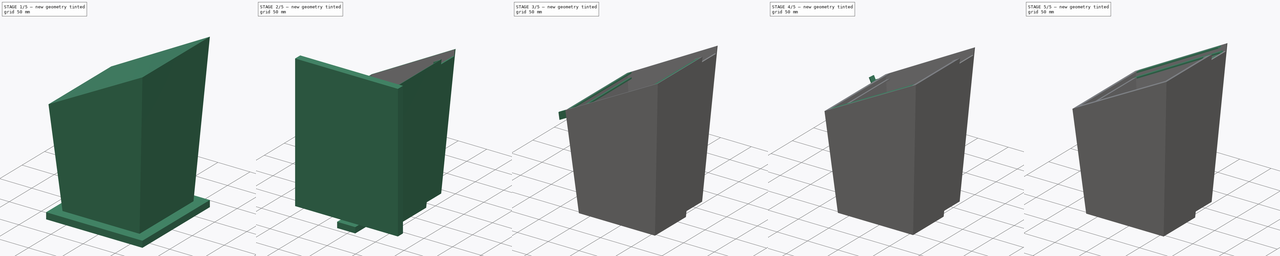
[diagram: build sequence overview — one tinted view per stage of 5, left to right]
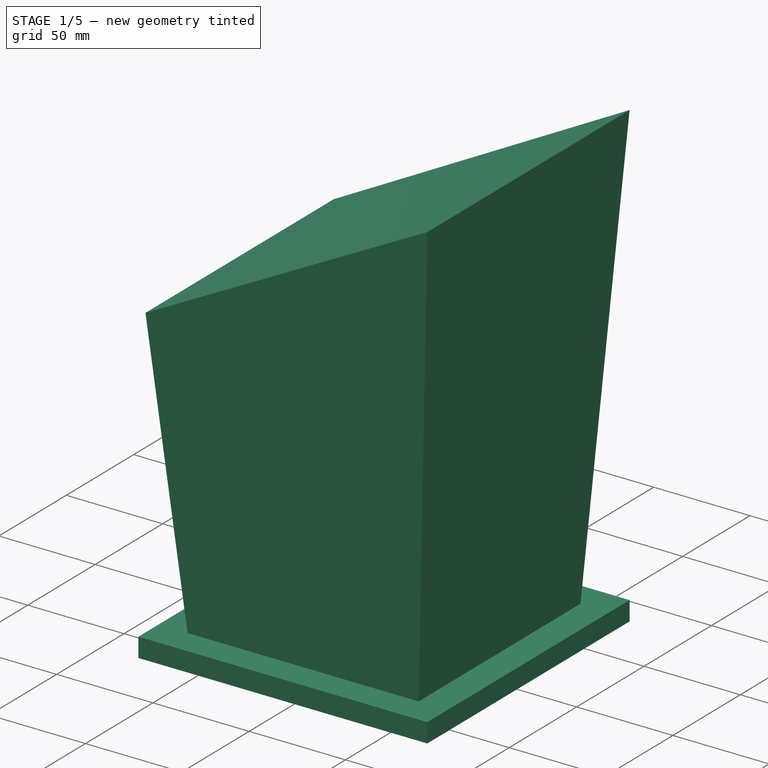
[diagram: stage 1 of 5 — iso view after this stage's code; geometry added in this stage tinted green]
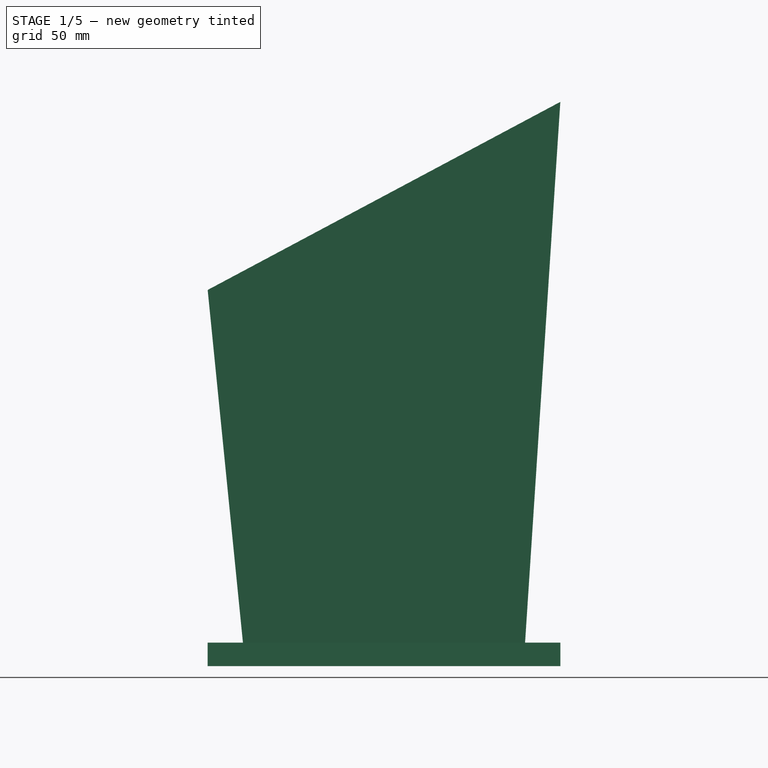
[diagram: stage 1 of 5 — front view after this stage's code; geometry added in this stage tinted green]
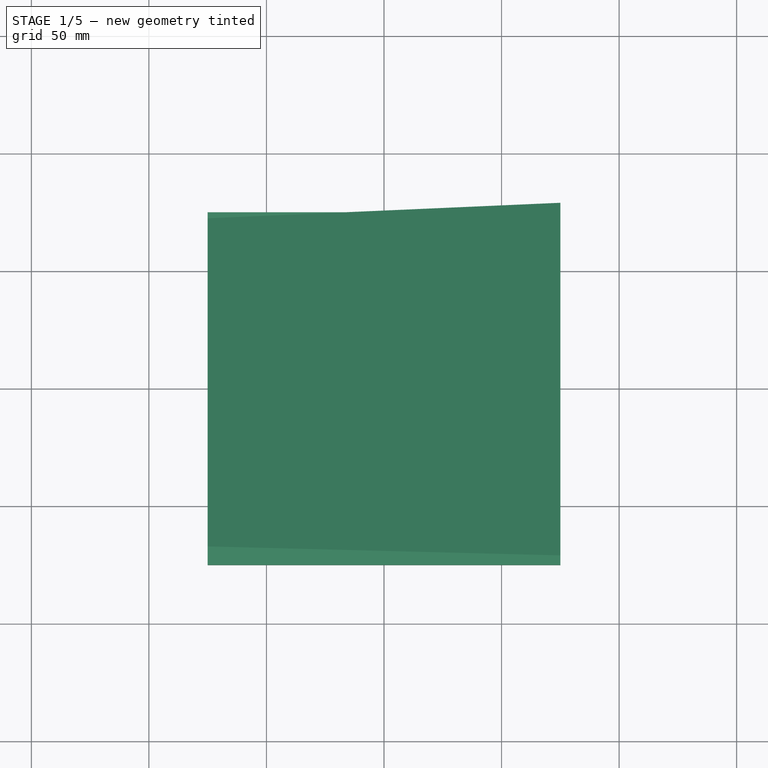
[diagram: stage 1 of 5 — top view after this stage's code; geometry added in this stage tinted green]
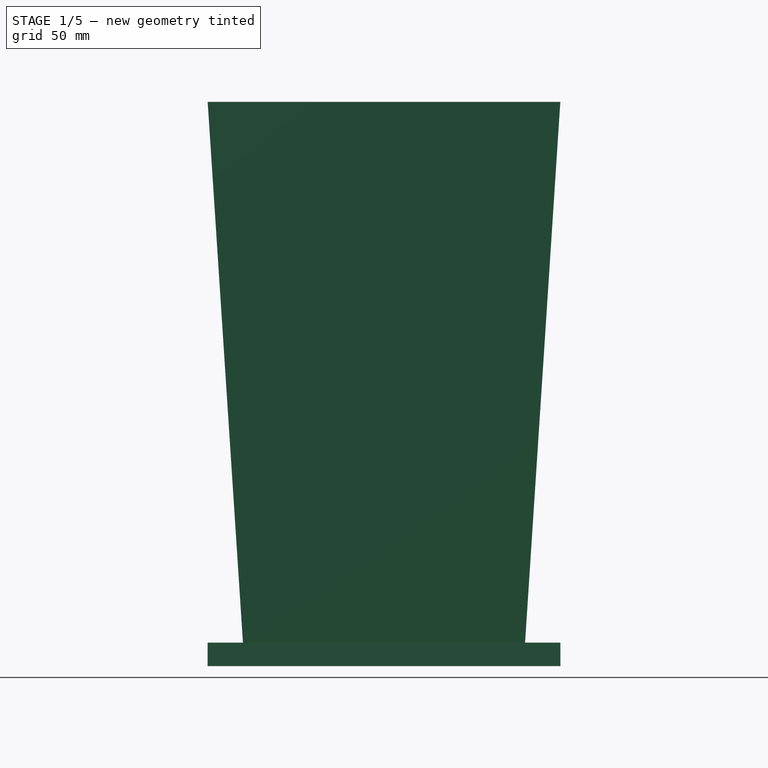
[diagram: stage 1 of 5 — right view after this stage's code; geometry added in this stage tinted green]
FCSTD DOCUMENT  (FreeCAD 0.15R4671 (Git))
Label: ermina
License: All rights reserved
LicenseURL: http://en.wikipedia.org/wiki/All_rights_reserved
objects: Sketcher::SketchObject×28, PartDesign::Pad×14, PartDesign::Pocket×12, Part::Thickness×1
note: 81 computed .brp shape members not serialized (recipe doc carries the construction recipe); baked Part::Feature solids carry a one-line shape summary decoded from their .brp

FEATURE [Sketcher::SketchObject] Sketch
  sketch-geometry (4):
    g0: LineSegment StartX=-75 StartY=75 StartZ=0 EndX=75 EndY=75 EndZ=0
    g1: LineSegment StartX=75 StartY=75 StartZ=0 EndX=75 EndY=-75 EndZ=0
    g2: LineSegment StartX=75 StartY=-75 StartZ=0 EndX=-75 EndY=-75 EndZ=0
    g3: LineSegment StartX=-75 StartY=-75 StartZ=0 EndX=-75 EndY=75 EndZ=0
  constraints (14):
    c: Coincident(g0,g1)
    c: Coincident(g1,g2)
    c: Coincident(g2,g3)
    c: Coincident(g3,g0)
    c: Horizontal(g0)
    c: Horizontal(g2)
    c: Vertical(g1)
    c: Vertical(g3)
    c: Equal(g3,g0)
    c: Equal(g0,g1)
    c: Equal(g1,g2)
    c: DistanceX(g0) = 150
    c: DistanceX(g-2,g0) = 75
    c: DistanceY(g-1,g0) = 75
FEATURE [PartDesign::Pad] Pad
  Length = 230
  Length2 = 100
  Sketch = -> Sketch
  Type = 0
FEATURE [Sketcher::SketchObject] Sketch001
  ExternalGeometry = -> [Pad]
  Placement = pos=(0,-75,0) rot=(1,0,0;1.5708rad)
  Support = -> Pad [Face3]
  sketch-geometry (3):
    g0: LineSegment StartX=-75 StartY=150 StartZ=0 EndX=-75 EndY=230 EndZ=0
    g1: LineSegment StartX=-75 StartY=230 StartZ=0 EndX=75 EndY=230 EndZ=0
    g2: LineSegment StartX=75 StartY=230 StartZ=0 EndX=-75 EndY=150 EndZ=0
  constraints (8):
    c: Coincident(g0,g1)
    c: Horizontal(g1)
    c: Coincident(g1,g2)
    c: Coincident(g2,g0)
    c: Coincident(g0,g-4)
    c: Coincident(g1,g-3)
    c: DistanceY(g0) = 80
    c: PointOnObject(g0,g-4)
FEATURE [PartDesign::Pocket] Pocket
  Length = 5
  Sketch = -> Sketch001
  Type = 1
FEATURE [Sketcher::SketchObject] Sketch005
  ExternalGeometry = -> [Pocket]
  Placement = pos=(75,0,0) rot=(0.57735,0.57735,0.57735;2.0944rad)
  Support = -> Pocket [Face3]
  sketch-geometry (6):
    g0: LineSegment StartX=-75 StartY=230 StartZ=0 EndX=-75 EndY=0 EndZ=0
    g1: LineSegment StartX=-75 StartY=0 StartZ=0 EndX=-60 EndY=0 EndZ=0
    g2: LineSegment StartX=-60 StartY=0 StartZ=0 EndX=-75 EndY=230 EndZ=0
    g3: LineSegment StartX=75 StartY=230 StartZ=0 EndX=60 EndY=0 EndZ=0
    g4: LineSegment StartX=60 StartY=0 StartZ=0 EndX=75 EndY=0 EndZ=0
    g5: LineSegment StartX=75 StartY=0 StartZ=0 EndX=75 EndY=230 EndZ=0
  constraints (16):
    c: Coincident(g-4,g0)
    c: Coincident(g0,g-5)
    c: Vertical(g0)
    c: Coincident(g0,g1)
    c: Coincident(g1,g2)
    c: Coincident(g2,g0)
    c: Coincident(g-3,g3)
    c: Coincident(g3,g4)
    c: Coincident(g4,g-5)
    c: Coincident(g4,g5)
    c: Coincident(g5,g3)
    c: Vertical(g5)
    c: Equal(g4,g1)
    c: DistanceX(g4) = 15
    c: PointOnObject(g1,g-5)
    c: PointOnObject(g3,g-5)
FEATURE [PartDesign::Pocket] Pocket001
  Length = 5
  Sketch = -> Sketch005
  Type = 1
FEATURE [Sketcher::SketchObject] Sketch006
  Placement = pos=(0,0,0) rot=(1,0,0;3.14159rad)
  Support = -> Pocket001 [Face3]
  sketch-geometry (4):
    g0: LineSegment StartX=-75 StartY=75 StartZ=0 EndX=75 EndY=75 EndZ=0
    g1: LineSegment StartX=75 StartY=75 StartZ=0 EndX=75 EndY=-75 EndZ=0
    g2: LineSegment StartX=75 StartY=-75 StartZ=0 EndX=-75 EndY=-75 EndZ=0
    g3: LineSegment StartX=-75 StartY=-75 StartZ=0 EndX=-75 EndY=75 EndZ=0
  constraints (14):
    c: Coincident(g0,g1)
    c: Coincident(g1,g2)
    c: Coincident(g2,g3)
    c: Coincident(g3,g0)
    c: Horizontal(g0)
    c: Horizontal(g2)
    c: Vertical(g1)
    c: Vertical(g3)
    c: Equal(g0,g3)
    c: Equal(g3,g1)
    c: Equal(g1,g2)
    c: DistanceX(g0) = 150
    c: DistanceX(g-2,g0) = 75
    c: DistanceY(g-1,g0) = 75
FEATURE [PartDesign::Pad] Pad001
  Length = 10
  Length2 = 100
  Sketch = -> Sketch006
  Type = 0
FEATURE [Sketcher::SketchObject] Sketch007
  ExternalGeometry = -> [Pad001]
  Placement = pos=(0,-75,0) rot=(1,0,0;1.5708rad)
  Support = -> Pad001 [Face10]
  sketch-geometry (6):
    g0: LineSegment StartX=-75 StartY=150 StartZ=0 EndX=-75 EndY=0 EndZ=0
    g1: LineSegment StartX=-75 StartY=0 StartZ=0 EndX=-60 EndY=0 EndZ=0
    g2: LineSegment StartX=-60 StartY=0 StartZ=0 EndX=-75 EndY=150 EndZ=0
    g3: LineSegment StartX=75 StartY=230 StartZ=0 EndX=75 EndY=0 EndZ=0
    g4: LineSegment StartX=75 StartY=0 StartZ=0 EndX=60 EndY=0 EndZ=0
    g5: LineSegment StartX=60 StartY=0 StartZ=0 EndX=75 EndY=230 EndZ=0
  constraints (16):
    c: Vertical(g0)
    c: Coincident(g0,g1)
    c: Horizontal(g1)
    c: Coincident(g1,g2)
    c: Coincident(g2,g0)
    c: Vertical(g3)
    c: Coincident(g3,g4)
    c: Horizontal(g4)
    c: Coincident(g4,g5)
    c: Coincident(g5,g3)
    c: Equal(g4,g1)
    c: DistanceX(g1) = 15
    c: DistanceY(g0) = -150
    c: DistanceY(g3) = -230
    c: Coincident(g0,g-3)
    c: Coincident(g3,g-3)
FEATURE [PartDesign::Pocket] Pocket002
  Length = 5
  Sketch = -> Sketch007
  Type = 1
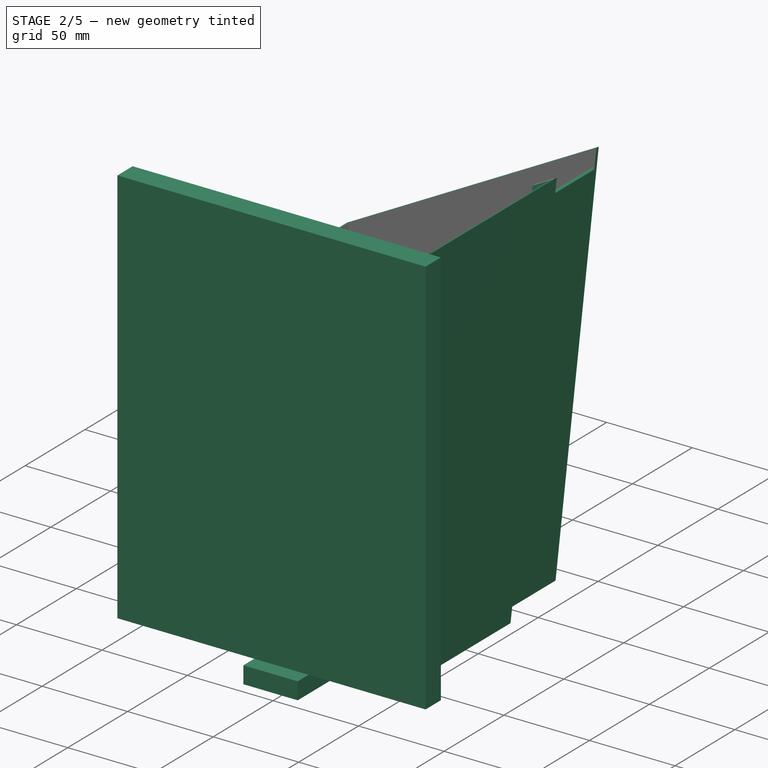
[diagram: stage 2 of 5 — iso view after this stage's code; geometry added in this stage tinted green]
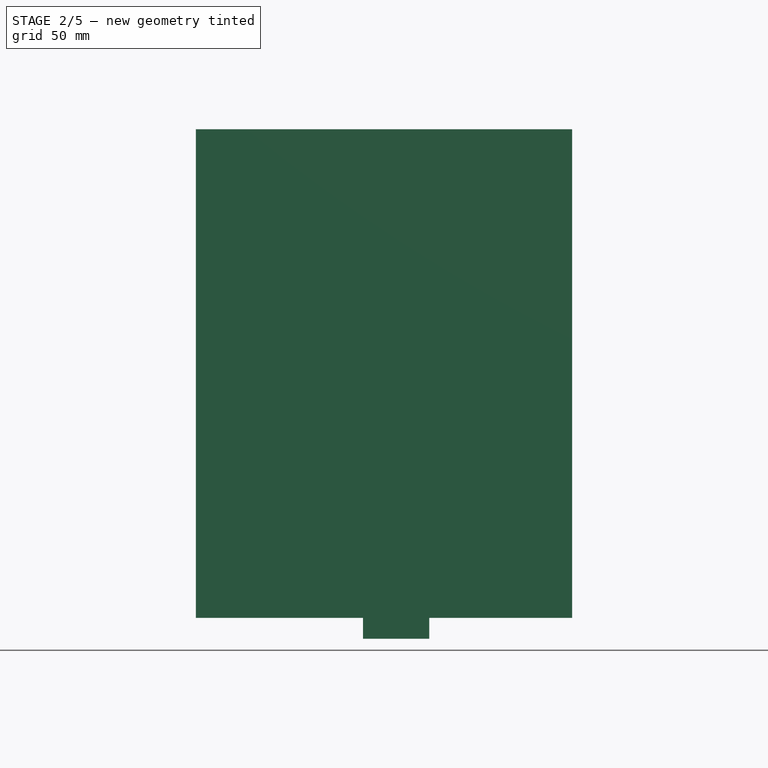
[diagram: stage 2 of 5 — front view after this stage's code; geometry added in this stage tinted green]
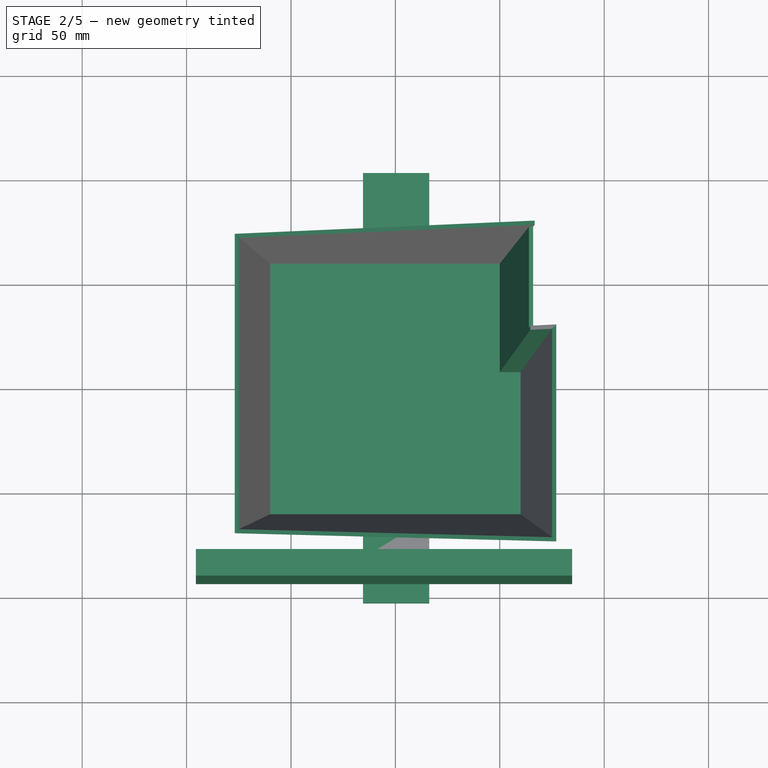
[diagram: stage 2 of 5 — top view after this stage's code; geometry added in this stage tinted green]
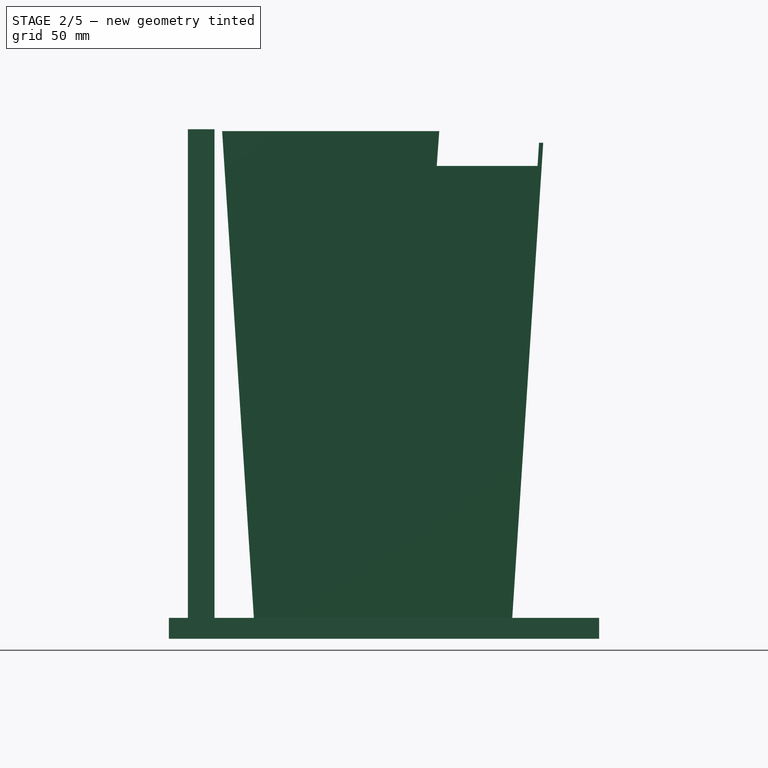
[diagram: stage 2 of 5 — right view after this stage's code; geometry added in this stage tinted green]
FEATURE [Sketcher::SketchObject] Sketch008
  ExternalGeometry = -> [Pocket002]
  Placement = pos=(0,-75,0) rot=(1,0,0;1.5708rad)
  Support = -> Pocket002 [Face10]
  sketch-geometry (4):
    g0: LineSegment StartX=-75 StartY=0 StartZ=0 EndX=75 EndY=0 EndZ=0
    g1: LineSegment StartX=75 StartY=0 StartZ=0 EndX=75 EndY=-10 EndZ=0
    g2: LineSegment StartX=75 StartY=-10 StartZ=0 EndX=-75 EndY=-10 EndZ=0
    g3: LineSegment StartX=-75 StartY=-10 StartZ=0 EndX=-75 EndY=0 EndZ=0
  constraints (10):
    c: Coincident(g0,g1)
    c: Coincident(g1,g2)
    c: Coincident(g2,g3)
    c: Coincident(g3,g0)
    c: Horizontal(g0)
    c: Horizontal(g2)
    c: Vertical(g1)
    c: Vertical(g3)
    c: Coincident(g0,g-4)
    c: Coincident(g2,g-3)
FEATURE [PartDesign::Pocket] Pocket003
  Length = 5
  Sketch = -> Sketch008
  Type = 1
FEATURE [Sketcher::SketchObject] Sketch009
  ExternalGeometry = -> [Pocket003]
  Placement = pos=(59.7459,0,-3.89647) rot=(0.589481,0.589481,0.552289;2.13239rad)
  Support = -> Pocket003 [Face3]
  sketch-geometry (4):
    g0: LineSegment StartX=78.537 StartY=257.946 StartZ=0 EndX=26.537 EndY=257.946 EndZ=0
    g1: LineSegment StartX=26.537 StartY=257.946 StartZ=0 EndX=5.73494 EndY=-28.288 EndZ=0
    g2: LineSegment StartX=5.73494 StartY=-28.288 StartZ=0 EndX=57.7349 EndY=-28.288 EndZ=0
    g3: LineSegment StartX=57.7349 StartY=-28.288 StartZ=0 EndX=78.537 EndY=257.946 EndZ=0
  constraints (10):
    c: Horizontal(g0)
    c: Coincident(g0,g1)
    c: Coincident(g1,g2)
    c: Coincident(g2,g3)
    c: Coincident(g3,g0)
    c: Horizontal(g2)
    c: Parallel(g3,g1)
    c: Distance(g0,g-3) = 2
    c: Equal(g2,g0)
    c: DistanceX(g0) = -52
FEATURE [PartDesign::Pocket] Pocket004
  Length = 10
  Sketch = -> Sketch009
  Type = 0
FEATURE [Part::Thickness] Thickness
  Faces = -> Pocket004 [Face1]
  Intersection = false
  Join = 2
  Mode = 0
  SelfIntersection = false
  Value = 2
FEATURE [Sketcher::SketchObject] Sketch010
  ExternalGeometry = -> [Thickness]
  Placement = pos=(49.7671,0,-3.24568) rot=(0.564403,-0.564403,-0.602411;2.05721rad)
  Support = -> Thickness [Face4]
  sketch-geometry (4):
    g0: LineSegment StartX=-73.9881 StartY=218.192 StartZ=0 EndX=-25.6532 EndY=218.192 EndZ=0
    g1: LineSegment StartX=-25.6532 StartY=218.192 StartZ=0 EndX=-28.0466 EndY=251.125 EndZ=0
    g2: LineSegment StartX=-28.0466 StartY=251.125 StartZ=0 EndX=-76.1313 EndY=251.125 EndZ=0
    g3: LineSegment StartX=-76.1313 StartY=251.125 StartZ=0 EndX=-73.9881 EndY=218.192 EndZ=0
  constraints (9):
    c: Horizontal(g0)
    c: Coincident(g0,g1)
    c: Coincident(g1,g2)
    c: Horizontal(g2)
    c: Coincident(g2,g3)
    c: Coincident(g3,g0)
    c: Tangent(g3,g-4)
    c: Distance(g-3,g0) = 10
    c: Tangent(g1,g-5)
FEATURE [PartDesign::Pocket] Pocket005
  Length = 2
  Sketch = -> Sketch010
  Type = 0
FEATURE [Sketcher::SketchObject] Sketch011
  ExternalGeometry = -> [Pocket005]
  Placement = pos=(-78.8927,0,147.924) rot=(0,-1,0;0.489957rad)
  Support = -> Pocket005 [Face2]
  sketch-geometry (12):
    g0: LineSegment StartX=162.645 StartY=24.3747 StartZ=0 EndX=174.412 EndY=24.8253 EndZ=0
    g1: LineSegment StartX=174.412 StartY=24.8253 StartZ=0 EndX=174.412 EndY=-75 EndZ=0
    g2: LineSegment StartX=174.412 StartY=-75 StartZ=0 EndX=4.41176 EndY=-69.7826 EndZ=0
    g3: LineSegment StartX=4.41176 StartY=-69.7826 StartZ=0 EndX=4.41176 EndY=69.7826 EndZ=0
    g4: LineSegment StartX=4.41176 StartY=69.7826 StartZ=0 EndX=162.645 EndY=74.6389 EndZ=0
    g5: LineSegment StartX=162.645 StartY=74.6389 StartZ=0 EndX=162.645 EndY=69.6365 EndZ=0
    g6: LineSegment StartX=162.645 StartY=69.6365 StartZ=0 EndX=9.41176 EndY=64.9337 EndZ=0
    g7: LineSegment StartX=9.41176 StartY=64.9337 StartZ=0 EndX=9.41176 EndY=-64.9337 EndZ=0
    g8: LineSegment StartX=9.41176 StartY=-64.9337 StartZ=0 EndX=169.412 EndY=-69.8442 EndZ=0
    g9: LineSegment StartX=169.412 StartY=-69.8442 StartZ=0 EndX=169.412 EndY=19.3747 EndZ=0
    g10: LineSegment StartX=169.412 StartY=19.3747 StartZ=0 EndX=162.645 EndY=19.3747 EndZ=0
    g11: LineSegment StartX=162.645 StartY=19.3747 StartZ=0 EndX=162.645 EndY=24.3747 EndZ=0
  constraints (30):
    c: Coincident(g0,g1)
    c: Coincident(g1,g2)
    c: Coincident(g2,g3)
    c: Coincident(g3,g4)
    c: Coincident(g4,g5)
    c: Coincident(g5,g6)
    c: Coincident(g6,g7)
    c: Coincident(g7,g8)
    c: Coincident(g8,g9)
    c: Coincident(g9,g10)
    c: Coincident(g10,g11)
    c: Coincident(g11,g0)
    c: Coincident(g0,g-5)
    c: Coincident(g0,g-4)
    c: Coincident(g1,g-6)
    c: Vertical(g11)
    c: Horizontal(g10)
    c: DistanceY(g11) = 5
    c: Vertical(g9)
    c: Distance(g9,g-5) = 5
    c: Coincident(g2,g-7)
    c: Distance(g8,g-6) = 5
    c: Distance(g7,g-6) = 5
    c: Coincident(g-7,g3)
    c: Distance(g7,g-7) = 5
    c: Distance(g6,g-7) = 5
    c: Coincident(g4,g-3)
    c: Vertical(g5)
    c: Distance(g5,g-3) = 5
    c: Distance(g6,g-3) = 5
FEATURE [Sketcher::SketchObject] Sketch012
  Placement = pos=(0,0,-2) rot=(1,0,0;3.14159rad)
  Support = -> Pocket005 [Face17]
  sketch-geometry (4):
    g0: LineSegment StartX=-15.5286 StartY=102.562 StartZ=0 EndX=16.2382 EndY=102.562 EndZ=0
    g1: LineSegment StartX=16.2382 StartY=102.562 StartZ=0 EndX=16.2382 EndY=-103.469 EndZ=0
    g2: LineSegment StartX=16.2382 StartY=-103.469 StartZ=0 EndX=-15.5286 EndY=-103.469 EndZ=0
    g3: LineSegment StartX=-15.5286 StartY=-103.469 StartZ=0 EndX=-15.5286 EndY=102.562 EndZ=0
  constraints (8):
    c: Coincident(g0,g1)
    c: Coincident(g1,g2)
    c: Coincident(g2,g3)
    c: Coincident(g3,g0)
    c: Horizontal(g0)
    c: Horizontal(g2)
    c: Vertical(g1)
    c: Vertical(g3)
FEATURE [PartDesign::Pad] Pad002
  Length = 10
  Length2 = 100
  Sketch = -> Sketch012
  Type = 0
FEATURE [Sketcher::SketchObject] Sketch013
  ExternalGeometry = -> [Pad002]
  Placement = pos=(0,0,-2) rot=(0,0,1;0rad)
  Support = -> Pad002 [Face18]
  sketch-geometry (4):
    g0: LineSegment StartX=84.6464 StartY=-79.0765 StartZ=0 EndX=-95.5451 EndY=-79.0765 EndZ=0
    g1: LineSegment StartX=-95.5451 StartY=-79.0765 StartZ=0 EndX=-95.5451 EndY=-77.0765 EndZ=0
    g2: LineSegment StartX=-95.5451 StartY=-77.0765 StartZ=0 EndX=84.6464 EndY=-77.0765 EndZ=0
    g3: LineSegment StartX=84.6464 StartY=-77.0765 StartZ=0 EndX=84.6464 EndY=-79.0765 EndZ=0
  constraints (11):
    c: Coincident(g0,g1)
    c: Coincident(g1,g2)
    c: Coincident(g2,g3)
    c: Coincident(g3,g0)
    c: Horizontal(g0)
    c: Horizontal(g2)
    c: Vertical(g1)
    c: Vertical(g3)
    c: PointOnObject(g-3,g2)
    c: Parallel(g1,g3)
    c: DistanceY(g3) = -2
FEATURE [PartDesign::Pad] Pad003
  Length = 234
  Length2 = 100
  Sketch = -> Sketch013
  Type = 0
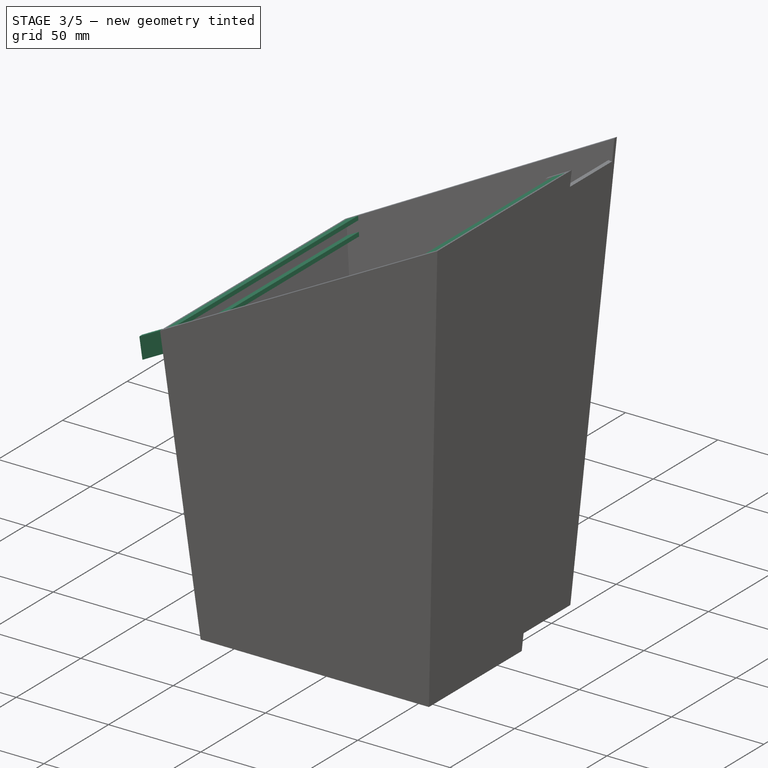
[diagram: stage 3 of 5 — iso view after this stage's code; geometry added in this stage tinted green]
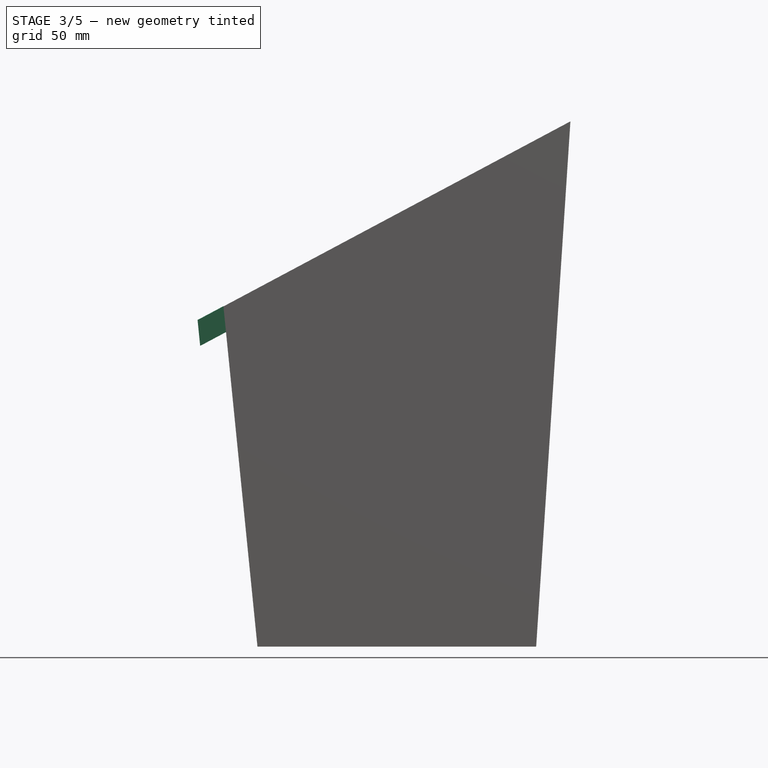
[diagram: stage 3 of 5 — front view after this stage's code; geometry added in this stage tinted green]
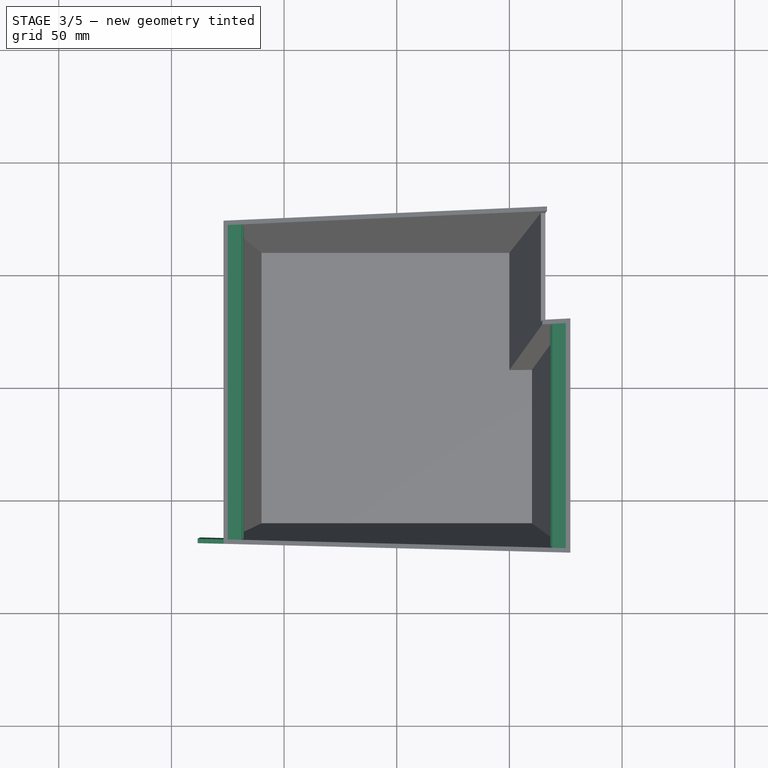
[diagram: stage 3 of 5 — top view after this stage's code; geometry added in this stage tinted green]
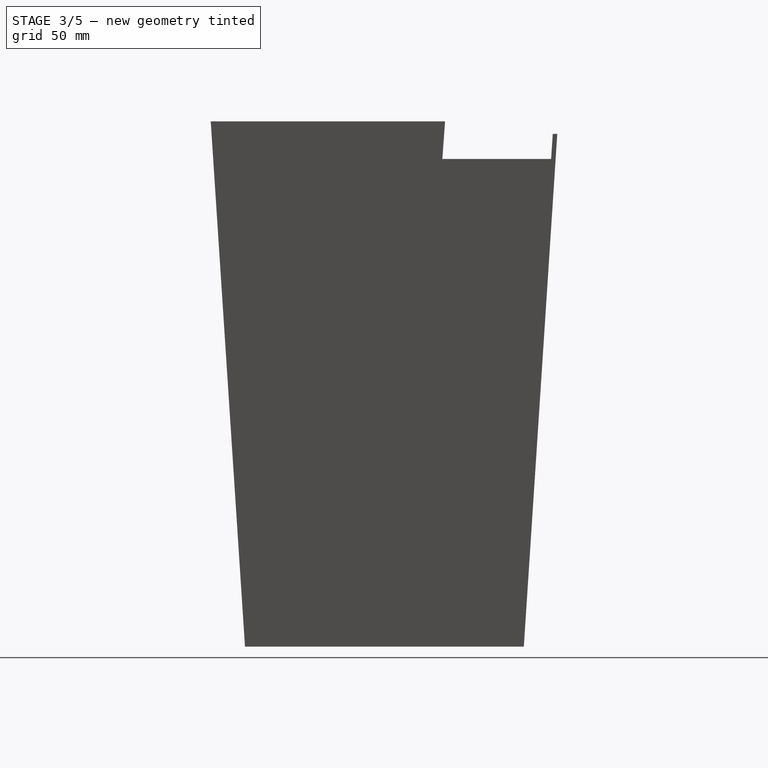
[diagram: stage 3 of 5 — right view after this stage's code; geometry added in this stage tinted green]
FEATURE [Sketcher::SketchObject] Sketch014
  ExternalGeometry = -> [Pad003]
  Placement = pos=(0,-80.7401,0) rot=(0,0.707107,0.707107;3.14159rad)
  Support = -> Pad003 [Face24]
  sketch-geometry (8):
    g0: LineSegment StartX=-75 StartY=230 StartZ=0 EndX=-68.8235 EndY=226.706 EndZ=0
    g1: LineSegment StartX=-68.8235 StartY=226.706 StartZ=0 EndX=-68.6704 EndY=224.358 EndZ=0
    g2: LineSegment StartX=-68.6704 StartY=224.358 StartZ=0 EndX=-74.8468 EndY=227.652 EndZ=0
    g3: LineSegment StartX=-74.8468 StartY=227.652 StartZ=0 EndX=-75 EndY=230 EndZ=0
    g4: LineSegment StartX=-74.464 StartY=221.781 StartZ=0 EndX=-74.3108 EndY=219.432 EndZ=0
    g5: LineSegment StartX=-74.3108 StartY=219.432 StartZ=0 EndX=-68.1343 EndY=216.138 EndZ=0
    g6: LineSegment StartX=-68.1343 StartY=216.138 StartZ=0 EndX=-68.2875 EndY=218.487 EndZ=0
    g7: LineSegment StartX=-68.2875 StartY=218.487 StartZ=0 EndX=-74.464 EndY=221.781 EndZ=0
  constraints (27):
    c: Coincident(g0,g1)
    c: Coincident(g1,g2)
    c: Coincident(g2,g3)
    c: Coincident(g3,g0)
    c: Coincident(g4,g5)
    c: Coincident(g5,g6)
    c: Coincident(g6,g7)
    c: Coincident(g7,g4)
    c: Parallel(g-3,g3)
    c: Parallel(g3,g4)
    c: Parallel(g4,g1)
    c: Parallel(g1,g6)
    c: Parallel(g5,g7)
    c: Parallel(g7,g2)
    c: Parallel(g2,g0)
    c: Parallel(g0,g-4)
    c: Equal(g2,g0)
    c: Equal(g0,g7)
    c: Equal(g7,g5)
    c: Distance(g5) = 7
    c: Equal(g1,g3)
    c: Equal(g3,g4)
    c: Equal(g4,g6)
    c: Distance(g0,g2) = 2
    c: Coincident(g0,g-4)
    c: PointOnObject(g4,g-3)
    c: Distance(g1,g7) = 5
FEATURE [PartDesign::Pad] Pad004
  Length = 10
  Length2 = 100
  Sketch = -> Sketch014
  Type = 3
  UpToFace = -> Pad003 [Face12]
FEATURE [Sketcher::SketchObject] Sketch015
  ExternalGeometry = -> [Pad004]
  Placement = pos=(0,-80.7401,0) rot=(0,0.707107,0.707107;3.14159rad)
  Support = -> Pad004 [Face28]
  sketch-geometry (8):
    g0: LineSegment StartX=75 StartY=150 StartZ=0 EndX=74.7848 EndY=147.848 EndZ=0
    g1: LineSegment StartX=74.7848 StartY=147.848 StartZ=0 EndX=68.6083 EndY=151.142 EndZ=0
    g2: LineSegment StartX=68.6083 StartY=151.142 StartZ=0 EndX=68.8235 EndY=153.294 EndZ=0
    g3: LineSegment StartX=68.8235 StartY=153.294 StartZ=0 EndX=75 EndY=150 EndZ=0
    g4: LineSegment StartX=68.0704 StartY=145.762 StartZ=0 EndX=67.8552 EndY=143.611 EndZ=0
    g5: LineSegment StartX=67.8552 StartY=143.611 StartZ=0 EndX=74.0316 EndY=140.316 EndZ=0
    g6: LineSegment StartX=74.0316 StartY=140.316 StartZ=0 EndX=74.2468 EndY=142.468 EndZ=0
    g7: LineSegment StartX=74.2468 StartY=142.468 StartZ=0 EndX=68.0704 EndY=145.762 EndZ=0
  constraints (27):
    c: Coincident(g0,g1)
    c: Coincident(g1,g2)
    c: Coincident(g2,g3)
    c: Coincident(g3,g0)
    c: Coincident(g4,g5)
    c: Coincident(g5,g6)
    c: Coincident(g6,g7)
    c: Coincident(g7,g4)
    c: Parallel(g1,g3)
    c: Parallel(g3,g5)
    c: Parallel(g5,g7)
    c: Parallel(g7,g-4)
    c: Parallel(g2,g0)
    c: Parallel(g0,g6)
    c: Parallel(g6,g4)
    c: Parallel(g4,g-3)
    c: Equal(g3,g1)
    c: Equal(g1,g7)
    c: Equal(g7,g5)
    c: Equal(g2,g0)
    c: Equal(g0,g6)
    c: Equal(g6,g4)
    c: Distance(g6,g5) = 2
    c: Distance(g5) = 7
    c: Coincident(g0,g-4)
    c: PointOnObject(g6,g-3)
    c: Distance(g1,g7) = 5
FEATURE [PartDesign::Pad] Pad005
  Length = 10
  Length2 = 100
  Sketch = -> Sketch015
  Type = 3
  UpToFace = -> Pad004 [Face15]
FEATURE [Sketcher::SketchObject] Sketch016
  ExternalGeometry = -> [Pad005]
  Placement = pos=(0,-93.4807,0) rot=(1,0,0;1.5708rad)
  Support = -> Pad005 [Face64]
  sketch-geometry (4):
    g0: LineSegment StartX=-95.5451 StartY=232 StartZ=0 EndX=84.6464 EndY=232 EndZ=0
    g1: LineSegment StartX=84.6464 StartY=232 StartZ=0 EndX=84.6464 EndY=-2 EndZ=0
    g2: LineSegment StartX=84.6464 StartY=-2 StartZ=0 EndX=-95.5451 EndY=-2 EndZ=0
    g3: LineSegment StartX=-95.5451 StartY=-2 StartZ=0 EndX=-95.5451 EndY=232 EndZ=0
  constraints (8):
    c: Coincident(g-4,g0)
    c: Coincident(g0,g-3)
    c: Coincident(g0,g1)
    c: Coincident(g1,g-3)
    c: Coincident(g1,g2)
    c: Coincident(g2,g-4)
    c: Coincident(g2,g3)
    c: Coincident(g3,g0)
FEATURE [PartDesign::Pocket] Pocket006
  Length = 0
  Sketch = -> Sketch016
  Type = 3
  UpToFace = -> Pad005 [Face3]
FEATURE [Sketcher::SketchObject] Sketch017
  ExternalGeometry = -> [Pocket006]
  Placement = pos=(0,0,-12) rot=(1,0,0;3.14159rad)
  Support = -> Pocket006 [Face45]
  sketch-geometry (4):
    g0: LineSegment StartX=-15.5286 StartY=102.562 StartZ=0 EndX=16.2382 EndY=102.562 EndZ=0
    g1: LineSegment StartX=16.2382 StartY=102.562 StartZ=0 EndX=16.2382 EndY=-103.469 EndZ=0
    g2: LineSegment StartX=16.2382 StartY=-103.469 StartZ=0 EndX=-15.5286 EndY=-103.469 EndZ=0
    g3: LineSegment StartX=-15.5286 StartY=-103.469 StartZ=0 EndX=-15.5286 EndY=102.562 EndZ=0
  constraints (8):
    c: Coincident(g-3,g0)
    c: Coincident(g0,g-3)
    c: Coincident(g0,g1)
    c: Coincident(g1,g-4)
    c: Coincident(g1,g2)
    c: Coincident(g2,g-4)
    c: Coincident(g2,g3)
    c: Coincident(g3,g0)
FEATURE [PartDesign::Pocket] Pocket007
  Length = 0
  Sketch = -> Sketch017
  Type = 3
  UpToFace = -> Pocket006 [Face19]
FEATURE [Sketcher::SketchObject] Sketch018
  ExternalGeometry = -> [Pocket007]
  Placement = pos=(0,-61.7416,-4.02663) rot=(1,0,0;1.63592rad)
  Support = -> Pocket007 [Face3]
  sketch-geometry (4):
    g0: LineSegment StartX=-76.9082 StartY=153.334 StartZ=0 EndX=-88.3872 EndY=147.199 EndZ=0
    g1: LineSegment StartX=-88.3872 StartY=147.199 StartZ=0 EndX=-87.248 EndY=135.783 EndZ=0
    g2: LineSegment StartX=-87.248 StartY=135.783 StartZ=0 EndX=-75.769 EndY=141.918 EndZ=0
    g3: LineSegment StartX=-75.769 StartY=141.918 StartZ=0 EndX=-76.9082 EndY=153.334 EndZ=0
  constraints (9):
    c: Coincident(g0,g1)
    c: Coincident(g1,g2)
    c: Coincident(g2,g3)
    c: Coincident(g3,g0)
    c: Parallel(g1,g3)
    c: Parallel(g3,g-4)
    c: Parallel(g0,g2)
    c: Parallel(g2,g-3)
    c: Coincident(g0,g-4)
FEATURE [PartDesign::Pad] Pad006
  Length = 2
  Length2 = 100
  Reversed = true
  Sketch = -> Sketch018
  Type = 0
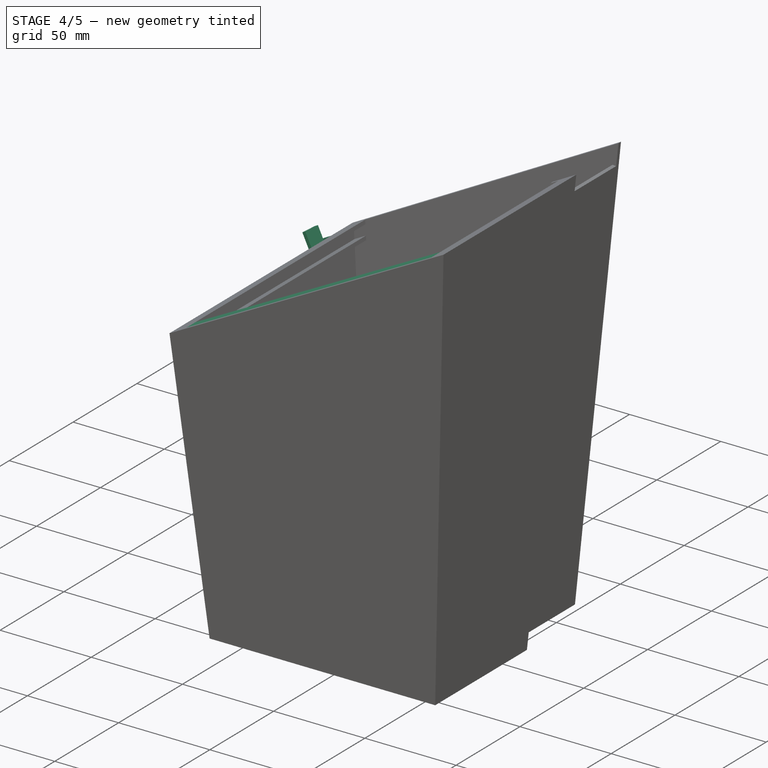
[diagram: stage 4 of 5 — iso view after this stage's code; geometry added in this stage tinted green]
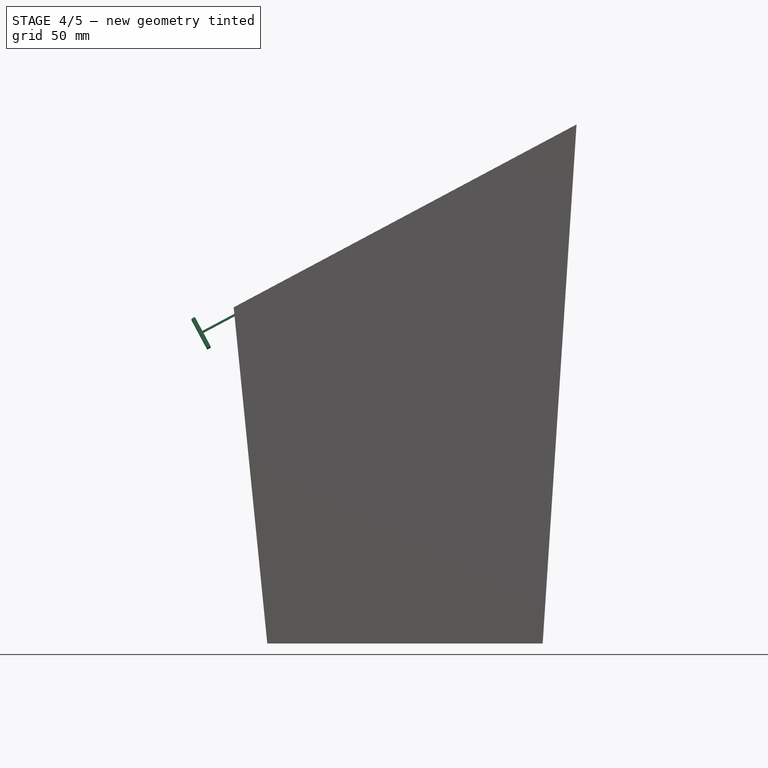
[diagram: stage 4 of 5 — front view after this stage's code; geometry added in this stage tinted green]
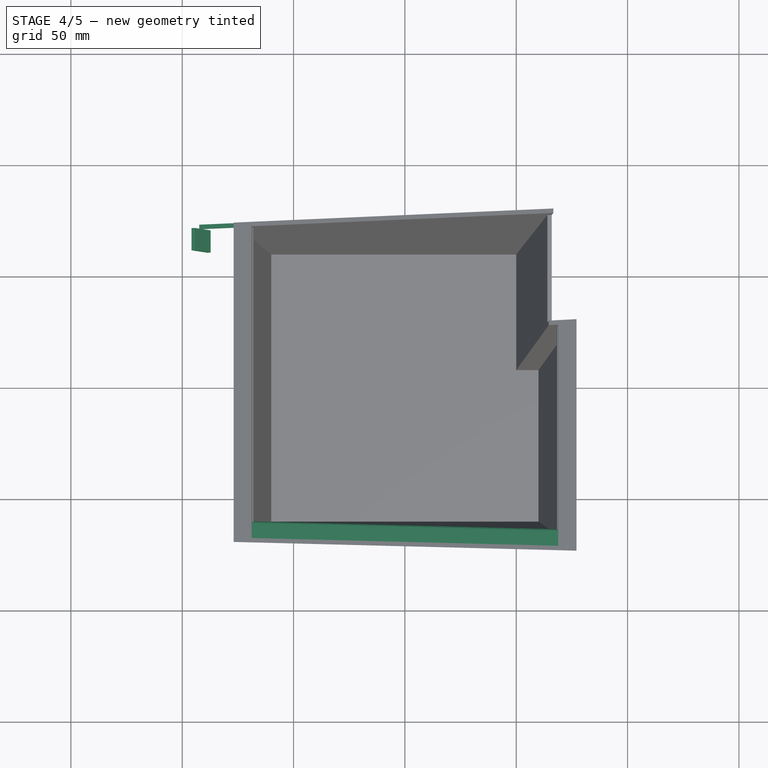
[diagram: stage 4 of 5 — top view after this stage's code; geometry added in this stage tinted green]
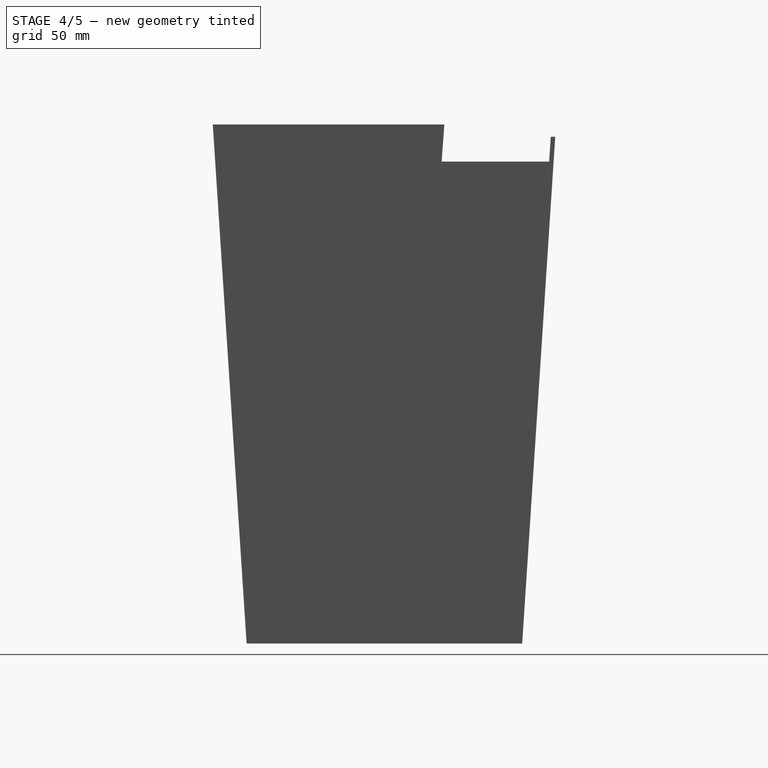
[diagram: stage 4 of 5 — right view after this stage's code; geometry added in this stage tinted green]
FEATURE [Sketcher::SketchObject] Sketch019
  ExternalGeometry = -> [Pad006]
  Placement = pos=(0,-59.7459,-3.89647) rot=(0,0.683711,0.729753;3.14159rad)
  Support = -> Pad006 [Face5]
  sketch-geometry (4):
    g0: LineSegment StartX=87.5052 StartY=147.67 StartZ=0 EndX=88.3872 EndY=147.199 EndZ=0
    g1: LineSegment StartX=88.3872 StartY=147.199 StartZ=0 EndX=83.6702 EndY=138.373 EndZ=0
    g2: LineSegment StartX=83.6702 StartY=138.373 StartZ=0 EndX=82.7883 EndY=138.845 EndZ=0
    g3: LineSegment StartX=82.7883 StartY=138.845 StartZ=0 EndX=87.5052 EndY=147.67 EndZ=0
  constraints (10):
    c: Coincident(g0,g1)
    c: Coincident(g1,g2)
    c: Coincident(g2,g3)
    c: Coincident(g3,g0)
    c: Parallel(g2,g0)
    c: Parallel(g0,g-3)
    c: Coincident(g0,g-3)
    c: Angle(g-3,g1) = 1.5708
    c: Parallel(g1,g3)
    c: Distance(g2) = 1
FEATURE [PartDesign::Pad] Pad007
  Length = 50
  Length2 = 100
  Sketch = -> Sketch019
  Type = 0
FEATURE [Sketcher::SketchObject] Sketch020
  ExternalGeometry = -> [Pad007]
  Placement = pos=(-6.674,0.232139,-3.55947) rot=(0.471648,0.44813,0.759426;1.8248rad)
  Support = -> Pad007 [Face19]
  sketch-geometry (8):
    g0: LineSegment StartX=-69.6144 StartY=167.647 StartZ=0 EndX=-62.6144 EndY=167.647 EndZ=0
    g1: LineSegment StartX=-62.6144 StartY=167.647 StartZ=0 EndX=-62.4994 EndY=165.647 EndZ=0
    g2: LineSegment StartX=-62.4994 StartY=165.647 StartZ=0 EndX=-69.4994 EndY=165.647 EndZ=0
    g3: LineSegment StartX=-69.4994 StartY=165.647 StartZ=0 EndX=-69.6144 EndY=167.647 EndZ=0
    g4: LineSegment StartX=-69.2118 StartY=160.647 StartZ=0 EndX=-62.2118 EndY=160.647 EndZ=0
    g5: LineSegment StartX=-62.2118 StartY=160.647 StartZ=0 EndX=-62.0968 EndY=158.647 EndZ=0
    g6: LineSegment StartX=-62.0968 StartY=158.647 StartZ=0 EndX=-69.0968 EndY=158.647 EndZ=0
    g7: LineSegment StartX=-69.0968 StartY=158.647 StartZ=0 EndX=-69.2118 EndY=160.647 EndZ=0
  constraints (27):
    c: Coincident(g0,g1)
    c: Coincident(g1,g2)
    c: Coincident(g2,g3)
    c: Coincident(g3,g0)
    c: Coincident(g4,g5)
    c: Coincident(g5,g6)
    c: Coincident(g6,g7)
    c: Coincident(g7,g4)
    c: Parallel(g6,g4)
    c: Parallel(g4,g2)
    c: Parallel(g2,g0)
    c: Parallel(g0,g-3)
    c: Parallel(g1,g5)
    c: Parallel(g5,g7)
    c: Parallel(g7,g3)
    c: Parallel(g3,g-5)
    c: Equal(g0,g2)
    c: Equal(g2,g4)
    c: Equal(g4,g6)
    c: Equal(g7,g5)
    c: Equal(g5,g1)
    c: Equal(g1,g3)
    c: Distance(g6) = 7
    c: Distance(g0,g2) = 2
    c: Coincident(g0,g-5)
    c: PointOnObject(g4,g-4)
    c: Distance(g2,g4) = 5
FEATURE [PartDesign::Pad] Pad008
  Length = 10
  Length2 = 100
  Sketch = -> Sketch020
  Type = 1
FEATURE [Sketcher::SketchObject] Sketch021
  Placement = pos=(-72.9719,0.473888,-7.26628) rot=(-0.593164,0.596644,0.54053;4.12672rad)
  Support = -> Pad008 [Face4]
  sketch-geometry (4):
    g0: LineSegment StartX=16.2412 StartY=156.513 StartZ=0 EndX=72.9595 EndY=156.513 EndZ=0
    g1: LineSegment StartX=72.9595 StartY=156.513 StartZ=0 EndX=72.9595 EndY=138.17 EndZ=0
    g2: LineSegment StartX=72.9595 StartY=138.17 StartZ=0 EndX=16.2412 EndY=138.17 EndZ=0
    g3: LineSegment StartX=16.2412 StartY=138.17 StartZ=0 EndX=16.2412 EndY=156.513 EndZ=0
  constraints (8):
    c: Coincident(g0,g1)
    c: Coincident(g1,g2)
    c: Coincident(g2,g3)
    c: Coincident(g3,g0)
    c: Horizontal(g0)
    c: Horizontal(g2)
    c: Vertical(g1)
    c: Vertical(g3)
FEATURE [PartDesign::Pocket] Pocket008
  Length = 0
  Sketch = -> Sketch021
  Type = 3
  UpToFace = -> Pad008 [Face10]
FEATURE [Sketcher::SketchObject] Sketch022
  ExternalGeometry = -> [Pocket008]
  Placement = pos=(-60.9999,0.396141,-6.07415) rot=(0.559887,0.555905,0.614406;2.03448rad)
  Support = -> Pocket008 [Face20]
  sketch-geometry (3):
    g0: LineSegment StartX=-70.1143 StartY=155.875 StartZ=0 EndX=-70.1223 EndY=155.999 EndZ=0
    g1: LineSegment StartX=-70.1223 StartY=155.999 StartZ=0 EndX=-72.1181 EndY=155.87 EndZ=0
    g2: LineSegment StartX=-72.1181 StartY=155.87 StartZ=0 EndX=-70.1143 EndY=155.875 EndZ=0
  constraints (2):
    c: Coincident(g0,g-4)
    c: Coincident(g0,g1)
FEATURE [PartDesign::Pocket] Pocket009
  Length = 5
  Sketch = -> Sketch022
  Type = 1
FEATURE [Sketcher::SketchObject] Sketch023
  ExternalGeometry = -> [Pocket009]
  Placement = pos=(0,61.7416,-4.02663) rot=(0,0.729753,0.683711;3.14159rad)
  Support = -> Pocket009 [Face23]
  sketch-geometry (4):
    g0: LineSegment StartX=74.6957 StartY=151.304 StartZ=0 EndX=92.3345 EndY=141.877 EndZ=0
    g1: LineSegment StartX=92.3345 StartY=141.877 StartZ=0 EndX=92.236 EndY=140.89 EndZ=0
    g2: LineSegment StartX=92.236 StartY=140.89 StartZ=0 EndX=74.5972 EndY=150.317 EndZ=0
    g3: LineSegment StartX=74.5972 StartY=150.317 StartZ=0 EndX=74.6957 EndY=151.304 EndZ=0
  constraints (10):
    c: Coincident(g0,g1)
    c: Coincident(g1,g2)
    c: Coincident(g2,g3)
    c: Coincident(g3,g0)
    c: Parallel(g3,g1)
    c: Parallel(g1,g-4)
    c: Parallel(g2,g0)
    c: Parallel(g0,g-3)
    c: Distance(g0) = 20
    c: Distance(g0,g-4) = 2
FEATURE [PartDesign::Pad] Pad009
  Length = 2
  Length2 = 100
  Reversed = true
  Sketch = -> Sketch023
  Type = 0
FEATURE [Sketcher::SketchObject] Sketch024
  ExternalGeometry = -> [Pad009]
  Placement = pos=(0,59.7459,-3.89647) rot=(1,0,0;1.50567rad)
  Support = -> Pad009 [Face28]
  sketch-geometry (4):
    g0: LineSegment StartX=-95.8554 StartY=147.407 StartZ=0 EndX=-88.7849 EndY=134.178 EndZ=0
    g1: LineSegment StartX=-88.7849 StartY=134.178 StartZ=0 EndX=-87.2473 EndY=135 EndZ=0
    g2: LineSegment StartX=-87.2473 StartY=135 StartZ=0 EndX=-94.3178 EndY=148.229 EndZ=0
    g3: LineSegment StartX=-94.3178 StartY=148.229 StartZ=0 EndX=-95.8554 EndY=147.407 EndZ=0
  constraints (9):
    c: Coincident(g0,g1)
    c: Coincident(g1,g2)
    c: Coincident(g2,g3)
    c: Coincident(g3,g0)
    c: Parallel(g3,g1)
    c: Parallel(g1,g-3)
    c: Parallel(g2,g0)
    c: Angle(g0,g-3) = 1.5708
    c: Distance(g2) = 15
FEATURE [PartDesign::Pad] Pad010
  Length = 10
  Length2 = 100
  Sketch = -> Sketch024
  Type = 0
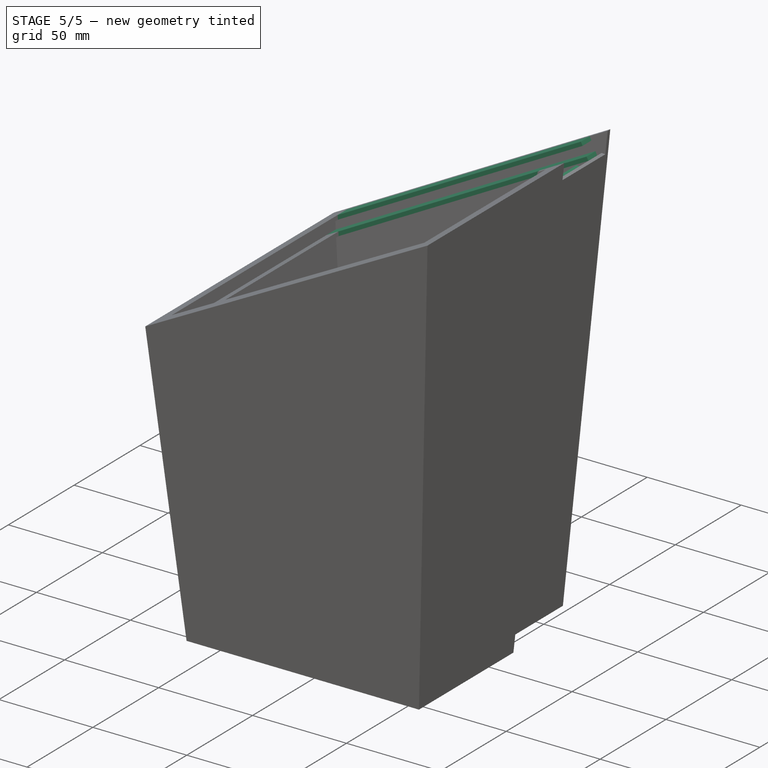
[diagram: stage 5 of 5 — iso view after this stage's code; geometry added in this stage tinted green]
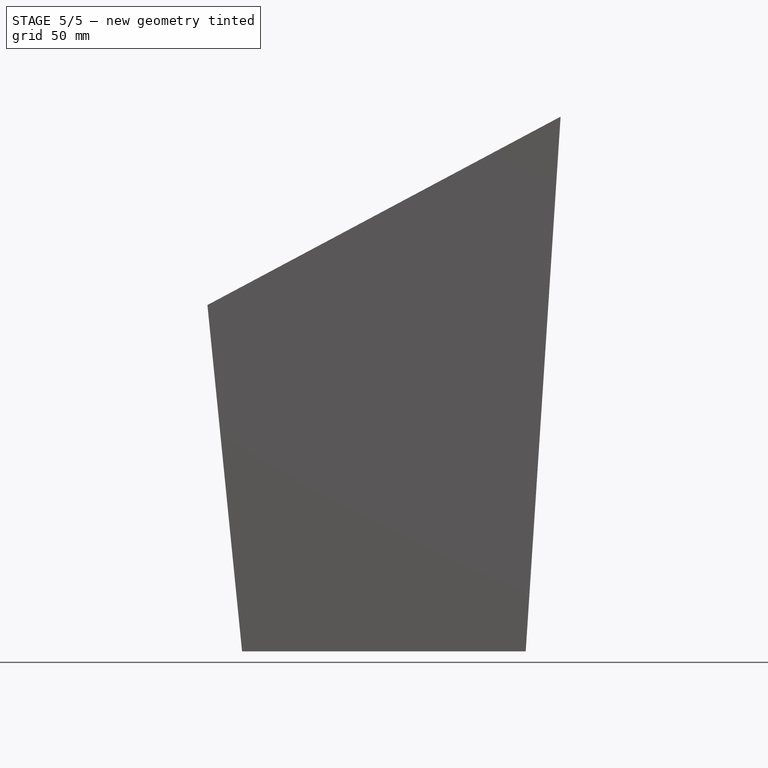
[diagram: stage 5 of 5 — front view after this stage's code; geometry added in this stage tinted green]
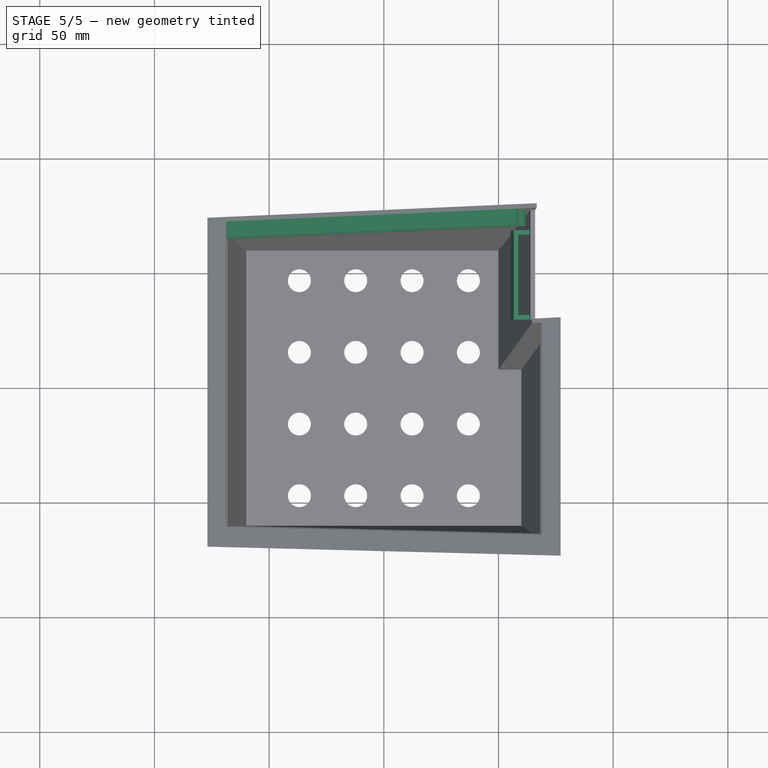
[diagram: stage 5 of 5 — top view after this stage's code; geometry added in this stage tinted green]
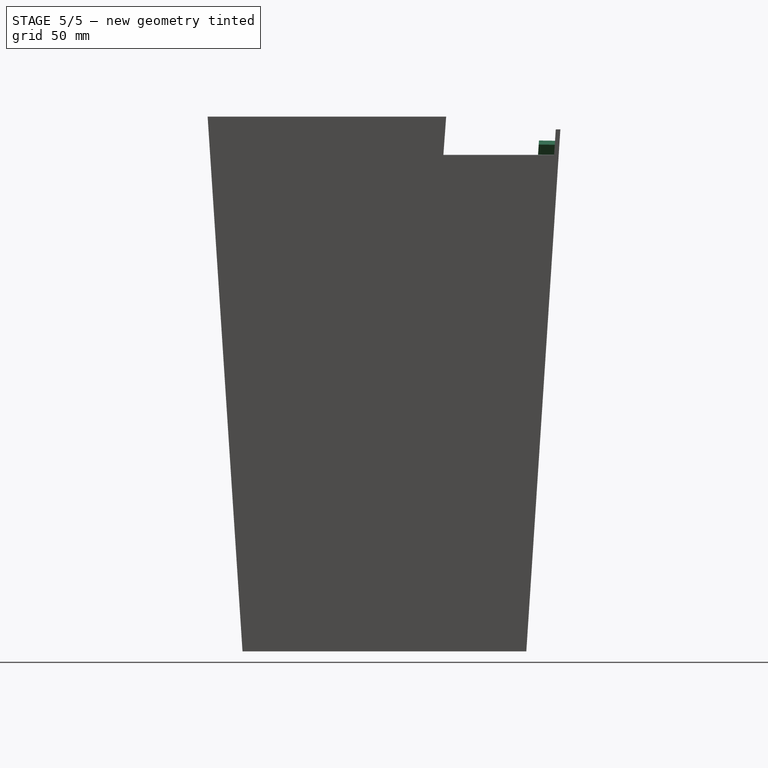
[diagram: stage 5 of 5 — right view after this stage's code; geometry added in this stage tinted green]
FEATURE [Sketcher::SketchObject] Sketch025
  ExternalGeometry = -> [Pad010]
  Placement = pos=(-11.7407,-0.408371,-6.26168) rot=(0.44336,0.466628,0.765304;1.85287rad)
  Support = -> Pad010 [Face52]
  sketch-geometry (8):
    g0: LineSegment StartX=69.6144 StartY=167.647 StartZ=0 EndX=62.6144 EndY=167.647 EndZ=0
    g1: LineSegment StartX=62.6144 StartY=167.647 StartZ=0 EndX=62.4996 EndY=165.65 EndZ=0
    g2: LineSegment StartX=62.4996 StartY=165.65 StartZ=0 EndX=69.4996 EndY=165.65 EndZ=0
    g3: LineSegment StartX=69.4996 StartY=165.65 StartZ=0 EndX=69.6144 EndY=167.647 EndZ=0
    g4: LineSegment StartX=69.2125 StartY=160.659 StartZ=0 EndX=62.2125 EndY=160.659 EndZ=0
    g5: LineSegment StartX=62.2125 StartY=160.659 StartZ=0 EndX=62.0976 EndY=158.662 EndZ=0
    g6: LineSegment StartX=62.0976 StartY=158.662 StartZ=0 EndX=69.0976 EndY=158.662 EndZ=0
    g7: LineSegment StartX=69.0976 StartY=158.662 StartZ=0 EndX=69.2125 EndY=160.659 EndZ=0
  constraints (25):
    c: Coincident(g0,g1)
    c: Coincident(g1,g2)
    c: Coincident(g2,g3)
    c: Coincident(g3,g0)
    c: Coincident(g4,g5)
    c: Coincident(g5,g6)
    c: Coincident(g6,g7)
    c: Coincident(g7,g4)
    c: Parallel(g1,g3)
    c: Parallel(g3,g-4)
    c: Parallel(g7,g5)
    c: Parallel(g0,g2)
    c: Parallel(g2,g4)
    c: Parallel(g4,g6)
    c: Parallel(g6,g-3)
    c: Equal(g4,g6)
    c: Equal(g6,g2)
    c: Equal(g2,g0)
    c: Equal(g1,g3)
    c: Equal(g3,g7)
    c: Equal(g7,g5)
    c: Distance(g2) = 7
    c: Distance(g5) = 2
    c: Coincident(g0,g-4)
    c: Distance(g4,g2) = 5
FEATURE [PartDesign::Pad] Pad011
  Length = 170
  Length2 = 100
  Sketch = -> Sketch025
  Type = 0
  UpToFace = -> Pad010 [Face18]
FEATURE [Sketcher::SketchObject] Sketch026
  Placement = pos=(-13.2783,-0.461853,-7.08174) rot=(0.659457,-0.647427,-0.38204;2.37698rad)
  Support = -> Pad011 [Face79]
  sketch-geometry (4):
    g0: LineSegment StartX=-73.8542 StartY=173.321 StartZ=0 EndX=-56.292 EndY=173.321 EndZ=0
    g1: LineSegment StartX=-56.292 StartY=173.321 StartZ=0 EndX=-56.292 EndY=154.385 EndZ=0
    g2: LineSegment StartX=-56.292 StartY=154.385 StartZ=0 EndX=-73.8542 EndY=154.385 EndZ=0
    g3: LineSegment StartX=-73.8542 StartY=154.385 StartZ=0 EndX=-73.8542 EndY=173.321 EndZ=0
  constraints (8):
    c: Coincident(g0,g1)
    c: Coincident(g1,g2)
    c: Coincident(g2,g3)
    c: Coincident(g3,g0)
    c: Horizontal(g0)
    c: Horizontal(g2)
    c: Vertical(g1)
    c: Vertical(g3)
FEATURE [PartDesign::Pocket] Pocket010
  Length = 0
  Sketch = -> Sketch026
  Type = 3
  UpToFace = -> Pad011 [Face6]
FEATURE [Sketcher::SketchObject] Sketch027
  ExternalGeometry = -> [Pocket010]
  Placement = pos=(0,0,-2) rot=(1,0,0;3.14159rad)
  Support = -> Pocket010 [Face8]
  sketch-geometry (16):
    g0: Circle CenterX=-36.81 CenterY=46.8738 CenterZ=0 NormalX=0 NormalY=0 NormalZ=1 Radius=5
    g1: Circle CenterX=-12.2487 CenterY=46.8738 CenterZ=0 NormalX=0 NormalY=0 NormalZ=1 Radius=5
    g2: Circle CenterX=12.3126 CenterY=46.8738 CenterZ=0 NormalX=0 NormalY=0 NormalZ=1 Radius=5
    g3: Circle CenterX=36.8738 CenterY=46.8738 CenterZ=0 NormalX=0 NormalY=0 NormalZ=1 Radius=5
    g4: Circle CenterX=-36.81 CenterY=15.6246 CenterZ=0 NormalX=0 NormalY=0 NormalZ=1 Radius=5
    g5: Circle CenterX=-12.2487 CenterY=15.6246 CenterZ=0 NormalX=0 NormalY=0 NormalZ=1 Radius=5
    g6: Circle CenterX=12.3126 CenterY=15.6246 CenterZ=0 NormalX=0 NormalY=0 NormalZ=1 Radius=5
    g7: Circle CenterX=36.8738 CenterY=15.6246 CenterZ=0 NormalX=0 NormalY=0 NormalZ=1 Radius=5
    g8: Circle CenterX=-36.81 CenterY=-15.6246 CenterZ=0 NormalX=0 NormalY=0 NormalZ=1 Radius=5
    g9: Circle CenterX=-12.2487 CenterY=-15.6246 CenterZ=0 NormalX=0 NormalY=0 NormalZ=1 Radius=5
    g10: Circle CenterX=12.3126 CenterY=-15.6246 CenterZ=0 NormalX=0 NormalY=0 NormalZ=1 Radius=5
    g11: Circle CenterX=36.8738 CenterY=-15.6246 CenterZ=0 NormalX=0 NormalY=0 NormalZ=1 Radius=5
    g12: Circle CenterX=-36.81 CenterY=-46.8738 CenterZ=0 NormalX=0 NormalY=0 NormalZ=1 Radius=5
    g13: Circle CenterX=-12.2487 CenterY=-46.8738 CenterZ=0 NormalX=0 NormalY=0 NormalZ=1 Radius=5
    g14: Circle CenterX=12.3126 CenterY=-46.8738 CenterZ=0 NormalX=0 NormalY=0 NormalZ=1 Radius=5
    g15: Circle CenterX=36.8738 CenterY=-46.8738 CenterZ=0 NormalX=0 NormalY=0 NormalZ=1 Radius=5
  constraints (2):
    c: Radius(g0) = 5
    c: Equal(g0, g1-g15) x15
FEATURE [Sketcher::SketchObject] Sketch028
  ExternalGeometry = -> [Pocket010]
  Placement = pos=(0,0,-2) rot=(1,0,0;3.14159rad)
  Support = -> Pocket010 [Face8]
  sketch-geometry (35):
    g0: Circle CenterX=-36.81 CenterY=46.8738 CenterZ=0 NormalX=0 NormalY=0 NormalZ=1 Radius=5
    g1: Circle CenterX=-12.2487 CenterY=46.8738 CenterZ=0 NormalX=0 NormalY=0 NormalZ=1 Radius=5
    g2: Circle CenterX=12.3126 CenterY=46.8738 CenterZ=0 NormalX=0 NormalY=0 NormalZ=1 Radius=5
    g3: Circle CenterX=36.8738 CenterY=46.8738 CenterZ=0 NormalX=0 NormalY=0 NormalZ=1 Radius=5
    g4: Circle CenterX=-36.81 CenterY=15.6246 CenterZ=0 NormalX=0 NormalY=0 NormalZ=1 Radius=5
    g5: Circle CenterX=-12.2487 CenterY=15.6246 CenterZ=0 NormalX=0 NormalY=0 NormalZ=1 Radius=5
    g6: Circle CenterX=12.3126 CenterY=15.6246 CenterZ=0 NormalX=0 NormalY=0 NormalZ=1 Radius=5
    g7: Circle CenterX=36.8738 CenterY=15.6246 CenterZ=0 NormalX=0 NormalY=0 NormalZ=1 Radius=5
    g8: Circle CenterX=-36.81 CenterY=-15.6246 CenterZ=0 NormalX=0 NormalY=0 NormalZ=1 Radius=5
    g9: Circle CenterX=-12.2487 CenterY=-15.6246 CenterZ=0 NormalX=0 NormalY=0 NormalZ=1 Radius=5
    g10: Circle CenterX=12.3126 CenterY=-15.6246 CenterZ=0 NormalX=0 NormalY=0 NormalZ=1 Radius=5
    g11: Circle CenterX=36.8738 CenterY=-15.6246 CenterZ=0 NormalX=0 NormalY=0 NormalZ=1 Radius=5
    g12: Circle CenterX=-36.81 CenterY=-46.8738 CenterZ=0 NormalX=0 NormalY=0 NormalZ=1 Radius=5
    g13: Circle CenterX=-12.2487 CenterY=-46.8738 CenterZ=0 NormalX=0 NormalY=0 NormalZ=1 Radius=5
    g14: Circle CenterX=12.3126 CenterY=-46.8738 CenterZ=0 NormalX=0 NormalY=0 NormalZ=1 Radius=5
    g15: Circle CenterX=36.8738 CenterY=-46.8738 CenterZ=0 NormalX=0 NormalY=0 NormalZ=1 Radius=5
    g16: LineSegment StartX=-36.81 StartY=46.8738 StartZ=0 EndX=-36.81 EndY=15.6246 EndZ=0
    g17: LineSegment StartX=-36.81 StartY=15.6246 StartZ=0 EndX=-36.81 EndY=-15.6246 EndZ=0
    g18: LineSegment StartX=-36.81 StartY=-15.6246 StartZ=0 EndX=-36.81 EndY=-46.8738 EndZ=0
    g19: LineSegment StartX=-36.81 StartY=-46.8738 StartZ=0 EndX=-12.2487 EndY=-46.8738 EndZ=0
    g20: LineSegment StartX=-12.2487 StartY=-46.8738 StartZ=0 EndX=-12.2487 EndY=-15.6246 EndZ=0
    g21: LineSegment StartX=-12.2487 StartY=-15.6246 StartZ=0 EndX=-12.2487 EndY=15.6246 EndZ=0
    g22: LineSegment StartX=-12.2487 StartY=15.6246 StartZ=0 EndX=-12.2487 EndY=46.8738 EndZ=0
    g23: LineSegment StartX=-12.2487 StartY=46.8738 StartZ=0 EndX=12.3126 EndY=46.8738 EndZ=0
    g24: LineSegment StartX=12.3126 StartY=46.8738 StartZ=0 EndX=12.3126 EndY=15.6246 EndZ=0
    g25: LineSegment StartX=12.3126 StartY=15.6246 StartZ=0 EndX=12.3126 EndY=-15.6246 EndZ=0
    g26: LineSegment StartX=12.3126 StartY=-15.6246 StartZ=0 EndX=12.3126 EndY=-46.8738 EndZ=0
    g27: LineSegment StartX=12.3126 StartY=-46.8738 StartZ=0 EndX=36.8738 EndY=-46.8738 EndZ=0
    g28: LineSegment StartX=36.8738 StartY=-46.8738 StartZ=0 EndX=36.8738 EndY=-15.6246 EndZ=0
    g29: LineSegment StartX=36.8738 StartY=-15.6246 StartZ=0 EndX=36.8738 EndY=15.6246 EndZ=0
    g30: LineSegment StartX=36.8738 StartY=15.6246 StartZ=0 EndX=36.8738 EndY=46.8738 EndZ=0
    g31: LineSegment StartX=-36.81 StartY=46.8738 StartZ=0 EndX=-36.81 EndY=61.8738 EndZ=0
    g32: LineSegment StartX=-36.81 StartY=-46.8738 StartZ=0 EndX=-36.81 EndY=-61.8738 EndZ=0
    g33: LineSegment StartX=-36.81 StartY=46.8738 StartZ=0 EndX=-61.81 EndY=46.8738 EndZ=0
    g34: LineSegment StartX=36.8738 StartY=46.8738 StartZ=0 EndX=61.8738 EndY=46.8738 EndZ=0
  constraints (76):
    c: Radius(g0) = 5
    c: Equal(g0, g1-g15) x15
    c: Coincident(g16,g0)
    c: Coincident(g16,g4)
    c: Vertical(g16)
    c: Coincident(g16,g17)
    c: Coincident(g17,g8)
    c: Coincident(g17,g18)
    c: Coincident(g18,g12)
    c: Coincident(g18,g19)
    c: Coincident(g19,g20)
    c: Coincident(g20,g9)
    c: Coincident(g20,g21)
    c: Coincident(g21,g5)
    c: Coincident(g21,g22)
    c: Coincident(g22,g1)
    c: Coincident(g22,g23)
    c: Coincident(g23,g2)
    c: Coincident(g23,g24)
    c: Coincident(g24,g6)
    c: Coincident(g24,g25)
    c: Coincident(g25,g10)
    c: Coincident(g25,g26)
    c: Coincident(g26,g14)
    c: Coincident(g26,g27)
    c: Coincident(g27,g15)
    c: Coincident(g27,g28)
    c: Coincident(g28,g11)
    c: Coincident(g28,g29)
    c: Coincident(g29,g7)
    c: Coincident(g29,g30)
    c: Coincident(g30,g3)
    c: Parallel(g29,g28)
    c: Parallel(g28,g26)
    c: Parallel(g26,g25)
    c: Parallel(g25,g24)
    c: Parallel(g24,g22)
    c: Parallel(g22,g21)
    c: Parallel(g21,g20)
    c: Parallel(g20,g18)
    c: Parallel(g18,g17)
    c: Parallel(g17,g16)
    c: Horizontal(g19)
    c: Horizontal(g27)
    c: Horizontal(g23)
    c: Parallel(g30,g24)
    c: Equal(g16,g17)
    c: Equal(g17,g18)
    c: Equal(g18,g20)
    c: Equal(g20,g21)
    c: Equal(g21,g22)
    c: Equal(g22,g24)
    c: Equal(g24,g25)
    c: Equal(g25,g26)
    c: Equal(g26,g28)
    c: Equal(g28,g29)
    c: Equal(g29,g30)
    c: Coincident(g13,g19)
    c: Equal(g19,g23)
    c: Equal(g23,g27)
    c: Coincident(g31,g0)
    c: PointOnObject(g31,g-4)
    c: Vertical(g31)
    c: Coincident(g32,g12)
    c: PointOnObject(g32,g-8)
    c: Vertical(g32)
    c: Equal(g31,g32)
    c: Coincident(g33,g0)
    c: PointOnObject(g33,g-10)
    c: Horizontal(g33)
    c: Coincident(g34,g3)
    c: PointOnObject(g34,g-9)
    c: Horizontal(g34)
    c: Equal(g34,g33)
    c: DistanceX(g33) = -25
    c: DistanceY(g32) = -15
FEATURE [PartDesign::Pocket] Pocket011
  Length = 5
  Sketch = -> Sketch027
  Type = 1
FEATURE [Sketcher::SketchObject] Sketch029
  ExternalGeometry = -> [Pocket011]
  Placement = pos=(49.7671,0,-3.24568) rot=(0.564403,-0.564403,-0.602411;2.05721rad)
  Support = -> Pocket011 [Face18]
  sketch-geometry (8):
    g0: LineSegment StartX=-63.2924 StartY=213.192 StartZ=0 EndX=-65.2924 EndY=213.192 EndZ=0
    g1: LineSegment StartX=-65.2924 StartY=213.192 StartZ=0 EndX=-65.2924 EndY=193.192 EndZ=0
    g2: LineSegment StartX=-65.2924 StartY=193.192 StartZ=0 EndX=-63.2924 EndY=193.192 EndZ=0
    g3: LineSegment StartX=-63.2924 StartY=193.192 StartZ=0 EndX=-63.2924 EndY=213.192 EndZ=0
    g4: LineSegment StartX=-26.2924 StartY=213.192 StartZ=0 EndX=-28.2924 EndY=213.192 EndZ=0
    g5: LineSegment StartX=-28.2924 StartY=213.192 StartZ=0 EndX=-28.2924 EndY=193.192 EndZ=0
    g6: LineSegment StartX=-28.2924 StartY=193.192 StartZ=0 EndX=-26.2924 EndY=193.192 EndZ=0
    g7: LineSegment StartX=-26.2924 StartY=193.192 StartZ=0 EndX=-26.2924 EndY=213.192 EndZ=0
  constraints (29):
    c: Coincident(g0,g1)
    c: Coincident(g1,g2)
    c: Coincident(g2,g3)
    c: Coincident(g3,g0)
    c: Horizontal(g0)
    c: Horizontal(g2)
    c: Vertical(g1)
    c: Vertical(g3)
    c: Coincident(g4,g5)
    c: Coincident(g5,g6)
    c: Coincident(g6,g7)
    c: Coincident(g7,g4)
    c: Horizontal(g4)
    c: Horizontal(g6)
    c: Vertical(g5)
    c: Vertical(g7)
    c: Equal(g0,g2)
    c: Equal(g2,g6)
    c: Equal(g6,g4)
    c: Equal(g3,g1)
    c: Equal(g1,g7)
    c: Equal(g7,g5)
    c: Distance(g3) = 20
    c: Distance(g2,g5) = 35
    c: Equal(g6,g2)
    c: DistanceX(g6) = 2
    c: Distance(g0,g-3) = 5
    c: Distance(g4,g-3) = 5
    c: Distance(g4,g-4) = 3
FEATURE [PartDesign::Pad] Pad012
  Length = 5
  Length2 = 100
  Sketch = -> Sketch029
  Type = 0
FEATURE [Sketcher::SketchObject] Sketch030
  ExternalGeometry = -> [Pad012]
  Placement = pos=(44.7777,0,-2.92028) rot=(0.564403,-0.564403,-0.602411;2.05721rad)
  Support = -> Pad012 [Face83]
  sketch-geometry (4):
    g0: LineSegment StartX=-65.2924 StartY=213.192 StartZ=0 EndX=-26.2924 EndY=213.192 EndZ=0
    g1: LineSegment StartX=-26.2924 StartY=213.192 StartZ=0 EndX=-26.2924 EndY=193.192 EndZ=0
    g2: LineSegment StartX=-26.2924 StartY=193.192 StartZ=0 EndX=-65.2924 EndY=193.192 EndZ=0
    g3: LineSegment StartX=-65.2924 StartY=193.192 StartZ=0 EndX=-65.2924 EndY=213.192 EndZ=0
  constraints (10):
    c: Coincident(g0,g1)
    c: Coincident(g1,g2)
    c: Coincident(g2,g3)
    c: Coincident(g3,g0)
    c: Horizontal(g0)
    c: Horizontal(g2)
    c: Vertical(g1)
    c: Vertical(g3)
    c: Coincident(g0,g-4)
    c: Coincident(g0,g-3)
FEATURE [PartDesign::Pad] Pad013
  Length = 2
  Length2 = 100
  Sketch = -> Sketch030
  Type = 0
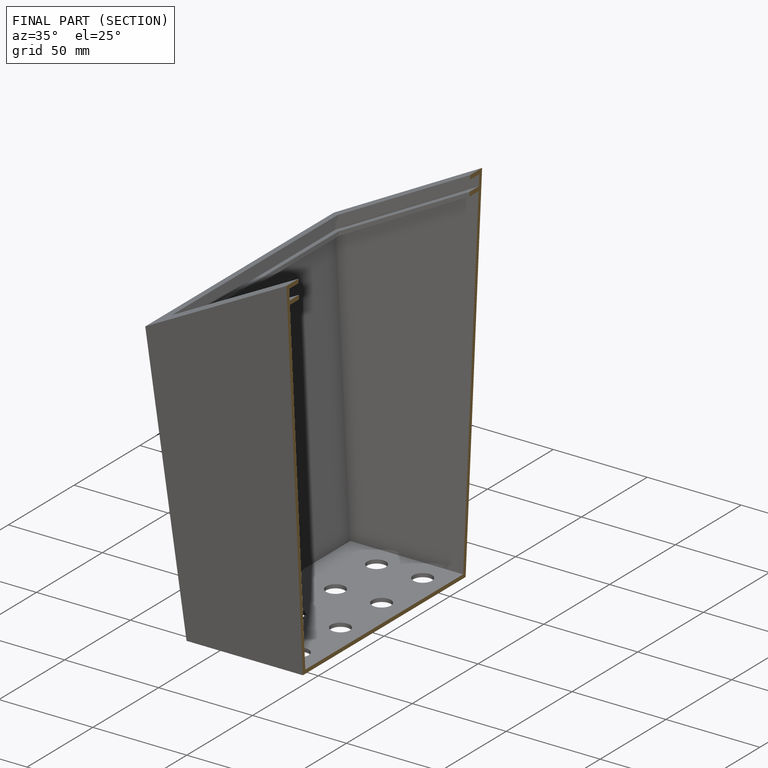
[diagram: finished part — half-section view (interior)]
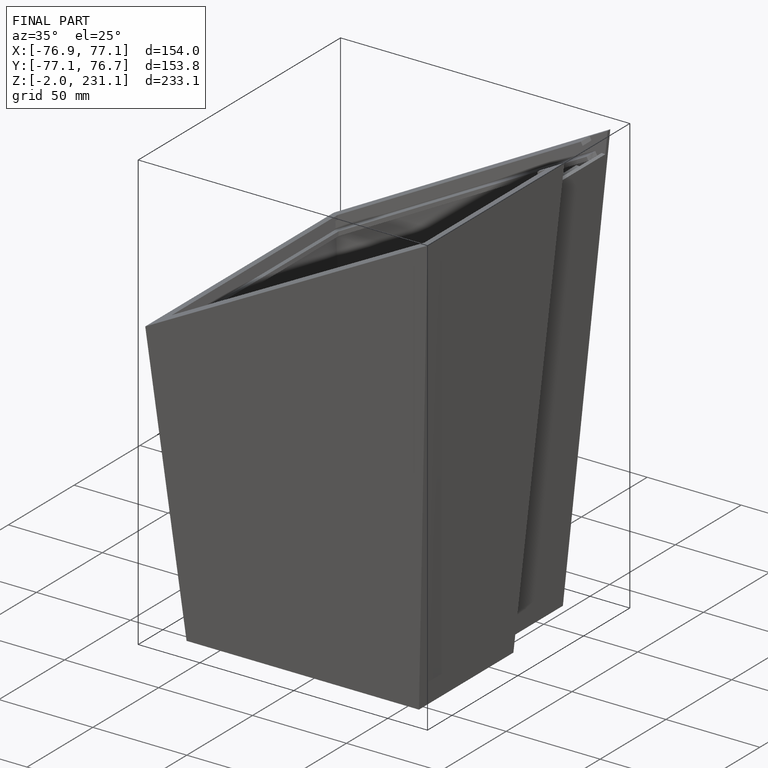
[diagram: finished part — iso view with bounding-box wireframe]
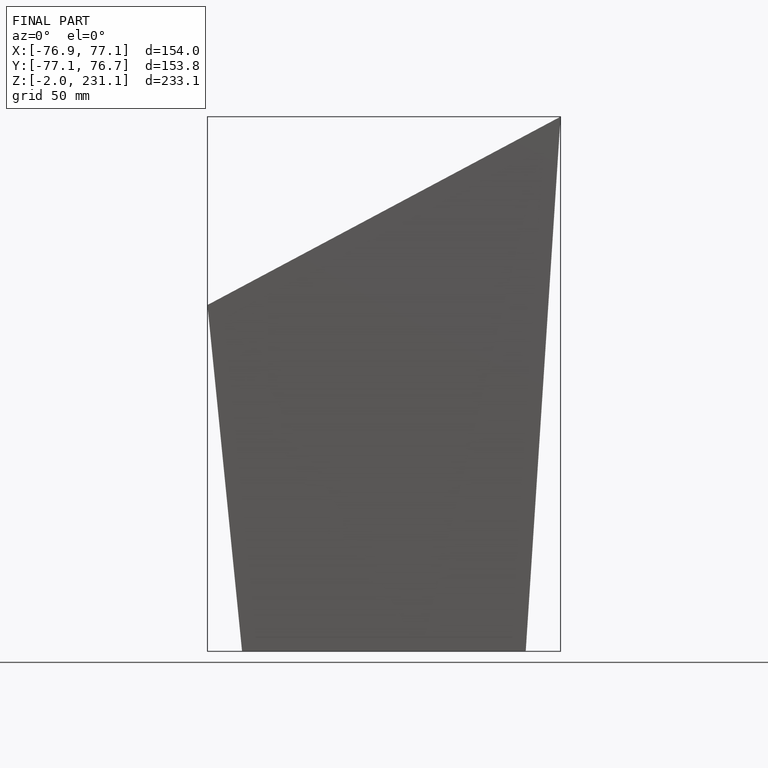
[diagram: finished part — front view with bounding-box wireframe]
